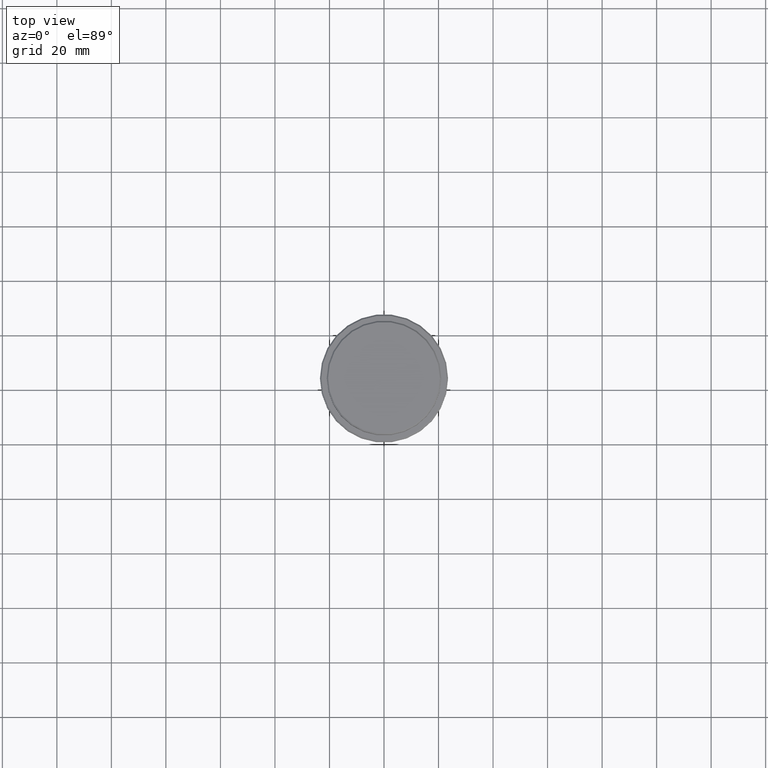
[diagram: clean part render]
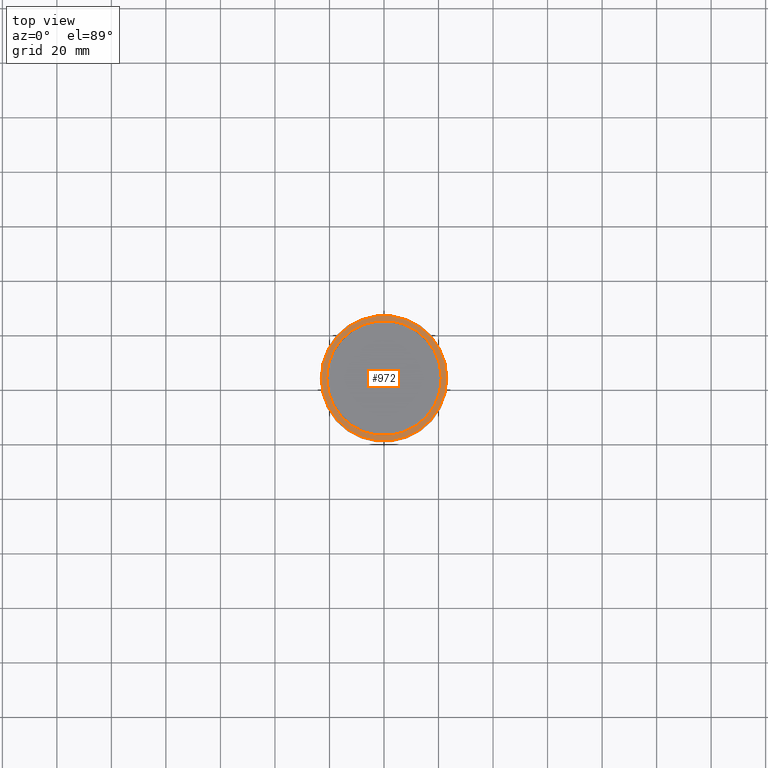
[diagram: same view with one face highlighted and labeled with its STEP entity id]
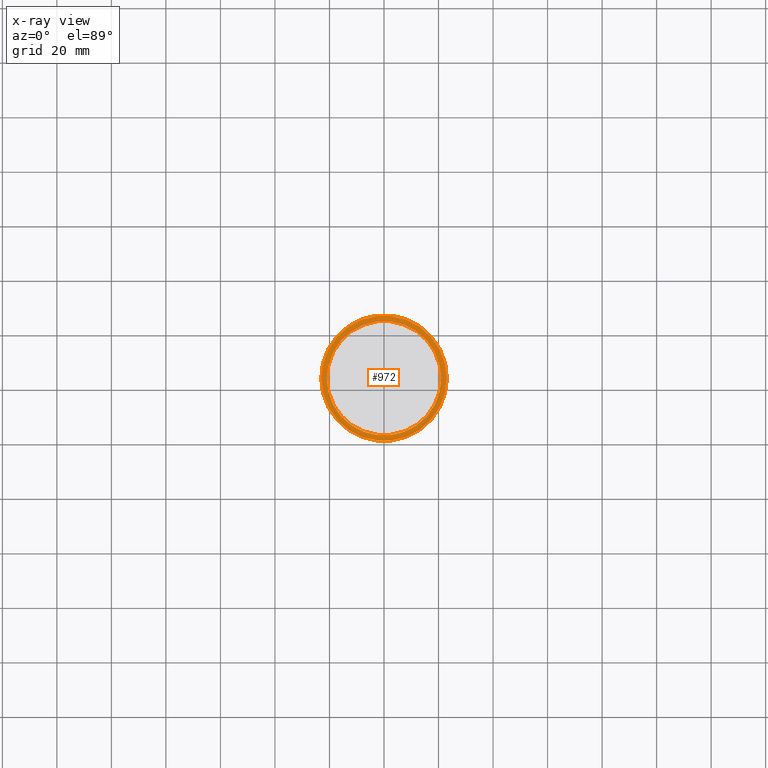
[diagram: x-ray of the same camera — body ghosted, the highlighted face saturated]
A machine part, top view. The second image highlights one B-rep face of the part: STEP entity #972.
The next image is the same camera in x-ray: the body ghosted, the highlighted face saturated — about 0% of this face is hidden behind the body in this view.
In plain terms, the highlighted planar face has unit normal (0, -0, 1).
Its self-contained STEP definition (entity closure, byte-faithful):
#2 = EDGE_CURVE ( 'NONE', #1136, #220, #956, .T. ) ;
#11 = DIRECTION ( 'NONE',  ( 0.000000000000000000, 0.000000000000000000, -1.000000000000000000 ) ) ;
#15 = AXIS2_PLACEMENT_3D ( 'NONE', #469, #125, #798 ) ;
#36 = CIRCLE ( 'NONE', #560, 22.99999999999999645 ) ;
#125 = DIRECTION ( 'NONE',  ( 0.000000000000000000, 0.000000000000000000, -1.000000000000000000 ) ) ;
#189 = VERTEX_POINT ( 'NONE', #662 ) ;
#220 = VERTEX_POINT ( 'NONE', #481 ) ;
#292 = CARTESIAN_POINT ( 'NONE',  ( 0.000000000000000000, 20.49999999999999645, -9.000000000000001776 ) ) ;
#295 = EDGE_CURVE ( 'NONE', #220, #1136, #36, .T. ) ;
#334 = ORIENTED_EDGE ( 'NONE', *, *, #295, .T. ) ;
#353 = EDGE_LOOP ( 'NONE', ( #334, #922 ) ) ;
#439 = CIRCLE ( 'NONE', #15, 20.99999999999999289 ) ;
#443 = CIRCLE ( 'NONE', #634, 20.99999999999999289 ) ;
#453 = FACE_BOUND ( 'NONE', #1345, .T. ) ;
#460 = CARTESIAN_POINT ( 'NONE',  ( -20.99999999999999289, 2.571758278209440872E-15, -9.000000000000001776 ) ) ;
#469 = CARTESIAN_POINT ( 'NONE',  ( 0.000000000000000000, 0.000000000000000000, -9.000000000000001776 ) ) ;
#481 = CARTESIAN_POINT ( 'NONE',  ( -22.99999999999999645, 0.000000000000000000, -9.000000000000001776 ) ) ;
#482 = DIRECTION ( 'NONE',  ( -0.000000000000000000, -0.000000000000000000, 1.000000000000000000 ) ) ;
#511 = ORIENTED_EDGE ( 'NONE', *, *, #685, .T. ) ;
#520 = DIRECTION ( 'NONE',  ( 0.000000000000000000, -0.000000000000000000, 1.000000000000000000 ) ) ;
#523 = DIRECTION ( 'NONE',  ( -0.000000000000000000, -0.000000000000000000, 1.000000000000000000 ) ) ;
#559 = DIRECTION ( 'NONE',  ( 1.000000000000000000, 0.000000000000000000, 0.000000000000000000 ) ) ;
#560 = AXIS2_PLACEMENT_3D ( 'NONE', #873, #523, #1406 ) ;
#570 = CARTESIAN_POINT ( 'NONE',  ( 22.99999999999999645, 2.847303808017596139E-15, -9.000000000000001776 ) ) ;
#634 = AXIS2_PLACEMENT_3D ( 'NONE', #1284, #11, #559 ) ;
#662 = CARTESIAN_POINT ( 'NONE',  ( 20.99999999999999289, 0.000000000000000000, -9.000000000000001776 ) ) ;
#667 = AXIS2_PLACEMENT_3D ( 'NONE', #292, #520, #731 ) ;
#685 = EDGE_CURVE ( 'NONE', #189, #691, #439, .T. ) ;
#687 = AXIS2_PLACEMENT_3D ( 'NONE', #1044, #482, #921 ) ;
#691 = VERTEX_POINT ( 'NONE', #460 ) ;
#731 = DIRECTION ( 'NONE',  ( 1.000000000000000000, 0.000000000000000000, 0.000000000000000000 ) ) ;
#798 = DIRECTION ( 'NONE',  ( 1.000000000000000000, 0.000000000000000000, 0.000000000000000000 ) ) ;
#873 = CARTESIAN_POINT ( 'NONE',  ( 0.000000000000000000, 0.000000000000000000, -9.000000000000001776 ) ) ;
#919 = EDGE_CURVE ( 'NONE', #691, #189, #443, .T. ) ;
#921 = DIRECTION ( 'NONE',  ( 1.000000000000000000, 0.000000000000000000, 0.000000000000000000 ) ) ;
#922 = ORIENTED_EDGE ( 'NONE', *, *, #2, .T. ) ;
#956 = CIRCLE ( 'NONE', #687, 22.99999999999999645 ) ;
#961 = FACE_OUTER_BOUND ( 'NONE', #353, .T. ) ;
#972 = ADVANCED_FACE ( 'NONE', ( #961, #453 ), #1077, .T. ) ;
#1044 = CARTESIAN_POINT ( 'NONE',  ( 0.000000000000000000, 0.000000000000000000, -9.000000000000001776 ) ) ;
#1077 = PLANE ( 'NONE',  #667 ) ;
#1100 = ORIENTED_EDGE ( 'NONE', *, *, #919, .T. ) ;
#1136 = VERTEX_POINT ( 'NONE', #570 ) ;
#1284 = CARTESIAN_POINT ( 'NONE',  ( 0.000000000000000000, 0.000000000000000000, -9.000000000000001776 ) ) ;
#1345 = EDGE_LOOP ( 'NONE', ( #511, #1100 ) ) ;
#1406 = DIRECTION ( 'NONE',  ( 1.000000000000000000, 0.000000000000000000, 0.000000000000000000 ) ) ;